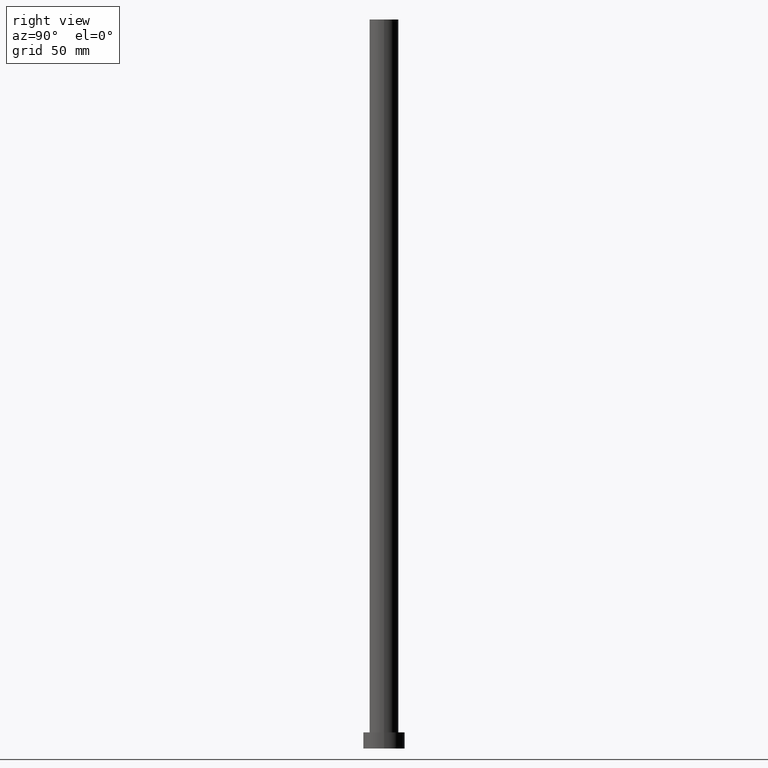
[diagram: clean part render]
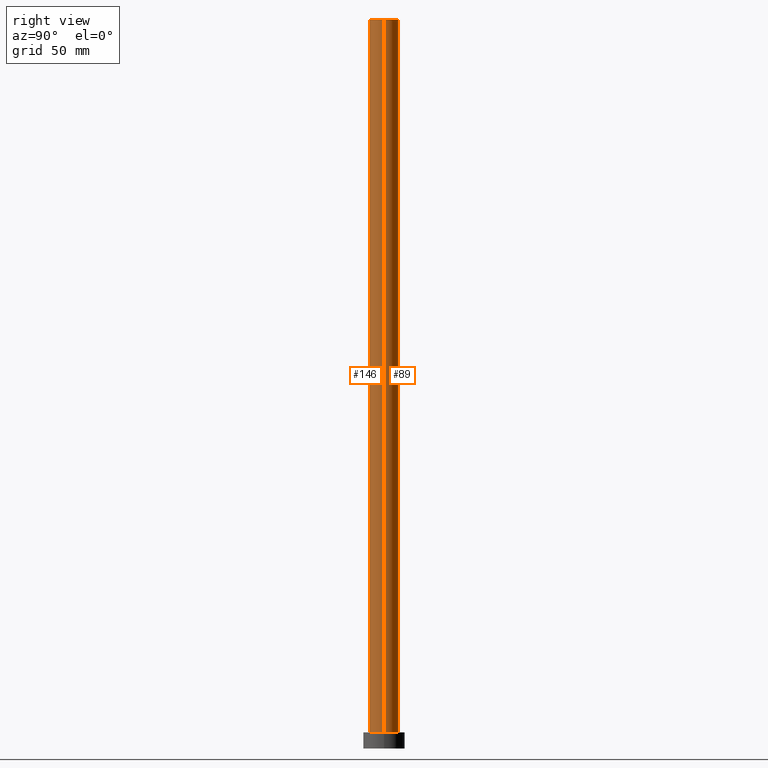
[diagram: same view with one multi-face feature highlighted, each face labeled with its STEP entity id]
A machine part, right view. The highlighted faces form ONE feature: a constant-radius fillet chain: 2 tangent blend faces with common blend radius 6.25 mm. The faces share edges in the B-rep.
Their STEP definitions:
[1] entity #89 (Cylinder):
#9 = CYLINDRICAL_SURFACE ( 'NONE', #51, 6.250000000000000000 ) ;
#11 = DIRECTION ( 'NONE',  ( 0.000000000000000000, 0.000000000000000000, 1.000000000000000000 ) ) ;
#24 = VERTEX_POINT ( 'NONE', #118 ) ;
#27 = CARTESIAN_POINT ( 'NONE',  ( 6.250000000000000000, 7.654042494670957606E-16, 7.000000000000000000 ) ) ;
#28 = VECTOR ( 'NONE', #77, 1000.000000000000000 ) ;
#33 = CIRCLE ( 'NONE', #188, 6.250000000000000000 ) ;
#44 = CARTESIAN_POINT ( 'NONE',  ( 6.250000000000000000, 7.654042494670957606E-16, 315.0000000000000000 ) ) ;
#48 = CARTESIAN_POINT ( 'NONE',  ( 6.250000000000000000, 7.654042494670957606E-16, 315.0000000000000000 ) ) ;
#51 = AXIS2_PLACEMENT_3D ( 'NONE', #120, #159, #66 ) ;
#58 = ORIENTED_EDGE ( 'NONE', *, *, #165, .T. ) ;
#63 = DIRECTION ( 'NONE',  ( 0.000000000000000000, 0.000000000000000000, 1.000000000000000000 ) ) ;
#66 = DIRECTION ( 'NONE',  ( -1.000000000000000000, 0.000000000000000000, 0.000000000000000000 ) ) ;
#67 = CARTESIAN_POINT ( 'NONE',  ( 0.000000000000000000, 0.000000000000000000, 315.0000000000000000 ) ) ;
#68 = VECTOR ( 'NONE', #245, 1000.000000000000000 ) ;
#69 = EDGE_CURVE ( 'NONE', #71, #24, #181, .T. ) ;
#71 = VERTEX_POINT ( 'NONE', #48 ) ;
#77 = DIRECTION ( 'NONE',  ( -0.000000000000000000, -0.000000000000000000, -1.000000000000000000 ) ) ;
#89 = ADVANCED_FACE ( 'NONE', ( #240 ), #9, .T. ) ;
#103 = LINE ( 'NONE', #178, #68 ) ;
#104 = DIRECTION ( 'NONE',  ( 1.000000000000000000, 0.000000000000000000, 0.000000000000000000 ) ) ;
#110 = EDGE_LOOP ( 'NONE', ( #234, #58, #192, #111 ) ) ;
#111 = ORIENTED_EDGE ( 'NONE', *, *, #133, .F. ) ;
#118 = CARTESIAN_POINT ( 'NONE',  ( -6.250000000000000000, 0.000000000000000000, 315.0000000000000000 ) ) ;
#120 = CARTESIAN_POINT ( 'NONE',  ( 0.000000000000000000, 0.000000000000000000, 315.0000000000000000 ) ) ;
#132 = VERTEX_POINT ( 'NONE', #199 ) ;
#133 = EDGE_CURVE ( 'NONE', #24, #132, #103, .T. ) ;
#159 = DIRECTION ( 'NONE',  ( -0.000000000000000000, -0.000000000000000000, -1.000000000000000000 ) ) ;
#160 = AXIS2_PLACEMENT_3D ( 'NONE', #67, #63, #197 ) ;
#165 = EDGE_CURVE ( 'NONE', #71, #186, #198, .T. ) ;
#177 = CARTESIAN_POINT ( 'NONE',  ( 0.000000000000000000, 0.000000000000000000, 7.000000000000000000 ) ) ;
#178 = CARTESIAN_POINT ( 'NONE',  ( -6.250000000000000000, 0.000000000000000000, 315.0000000000000000 ) ) ;
#181 = CIRCLE ( 'NONE', #160, 6.250000000000000000 ) ;
#186 = VERTEX_POINT ( 'NONE', #27 ) ;
#188 = AXIS2_PLACEMENT_3D ( 'NONE', #177, #11, #104 ) ;
#191 = EDGE_CURVE ( 'NONE', #186, #132, #33, .T. ) ;
#192 = ORIENTED_EDGE ( 'NONE', *, *, #191, .T. ) ;
#197 = DIRECTION ( 'NONE',  ( 1.000000000000000000, 0.000000000000000000, 0.000000000000000000 ) ) ;
#198 = LINE ( 'NONE', #44, #28 ) ;
#199 = CARTESIAN_POINT ( 'NONE',  ( -6.250000000000000000, 0.000000000000000000, 7.000000000000000000 ) ) ;
#234 = ORIENTED_EDGE ( 'NONE', *, *, #69, .F. ) ;
#240 = FACE_OUTER_BOUND ( 'NONE', #110, .T. ) ;
#245 = DIRECTION ( 'NONE',  ( -0.000000000000000000, -0.000000000000000000, -1.000000000000000000 ) ) ;
[2] entity #146 (Cylinder):
#2 = ORIENTED_EDGE ( 'NONE', *, *, #165, .F. ) ;
#6 = ORIENTED_EDGE ( 'NONE', *, *, #133, .T. ) ;
#13 = DIRECTION ( 'NONE',  ( 1.000000000000000000, 0.000000000000000000, 0.000000000000000000 ) ) ;
#24 = VERTEX_POINT ( 'NONE', #118 ) ;
#26 = FACE_OUTER_BOUND ( 'NONE', #61, .T. ) ;
#27 = CARTESIAN_POINT ( 'NONE',  ( 6.250000000000000000, 7.654042494670957606E-16, 7.000000000000000000 ) ) ;
#28 = VECTOR ( 'NONE', #77, 1000.000000000000000 ) ;
#30 = DIRECTION ( 'NONE',  ( 1.000000000000000000, 0.000000000000000000, 0.000000000000000000 ) ) ;
#41 = CIRCLE ( 'NONE', #172, 6.250000000000000000 ) ;
#43 = ORIENTED_EDGE ( 'NONE', *, *, #243, .T. ) ;
#44 = CARTESIAN_POINT ( 'NONE',  ( 6.250000000000000000, 7.654042494670957606E-16, 315.0000000000000000 ) ) ;
#48 = CARTESIAN_POINT ( 'NONE',  ( 6.250000000000000000, 7.654042494670957606E-16, 315.0000000000000000 ) ) ;
#53 = CARTESIAN_POINT ( 'NONE',  ( 0.000000000000000000, 0.000000000000000000, 315.0000000000000000 ) ) ;
#61 = EDGE_LOOP ( 'NONE', ( #2, #239, #6, #43 ) ) ;
#65 = CYLINDRICAL_SURFACE ( 'NONE', #220, 6.250000000000000000 ) ;
#68 = VECTOR ( 'NONE', #245, 1000.000000000000000 ) ;
#71 = VERTEX_POINT ( 'NONE', #48 ) ;
#77 = DIRECTION ( 'NONE',  ( -0.000000000000000000, -0.000000000000000000, -1.000000000000000000 ) ) ;
#101 = DIRECTION ( 'NONE',  ( -1.000000000000000000, 0.000000000000000000, 0.000000000000000000 ) ) ;
#103 = LINE ( 'NONE', #178, #68 ) ;
#112 = AXIS2_PLACEMENT_3D ( 'NONE', #180, #145, #13 ) ;
#118 = CARTESIAN_POINT ( 'NONE',  ( -6.250000000000000000, 0.000000000000000000, 315.0000000000000000 ) ) ;
#126 = DIRECTION ( 'NONE',  ( 0.000000000000000000, 0.000000000000000000, 1.000000000000000000 ) ) ;
#132 = VERTEX_POINT ( 'NONE', #199 ) ;
#133 = EDGE_CURVE ( 'NONE', #24, #132, #103, .T. ) ;
#139 = CARTESIAN_POINT ( 'NONE',  ( 0.000000000000000000, 0.000000000000000000, 315.0000000000000000 ) ) ;
#145 = DIRECTION ( 'NONE',  ( 0.000000000000000000, 0.000000000000000000, 1.000000000000000000 ) ) ;
#146 = ADVANCED_FACE ( 'NONE', ( #26 ), #65, .T. ) ;
#165 = EDGE_CURVE ( 'NONE', #71, #186, #198, .T. ) ;
#172 = AXIS2_PLACEMENT_3D ( 'NONE', #53, #126, #30 ) ;
#178 = CARTESIAN_POINT ( 'NONE',  ( -6.250000000000000000, 0.000000000000000000, 315.0000000000000000 ) ) ;
#180 = CARTESIAN_POINT ( 'NONE',  ( 0.000000000000000000, 0.000000000000000000, 7.000000000000000000 ) ) ;
#186 = VERTEX_POINT ( 'NONE', #27 ) ;
#190 = CIRCLE ( 'NONE', #112, 6.250000000000000000 ) ;
#198 = LINE ( 'NONE', #44, #28 ) ;
#199 = CARTESIAN_POINT ( 'NONE',  ( -6.250000000000000000, 0.000000000000000000, 7.000000000000000000 ) ) ;
#220 = AXIS2_PLACEMENT_3D ( 'NONE', #139, #221, #101 ) ;
#221 = DIRECTION ( 'NONE',  ( -0.000000000000000000, -0.000000000000000000, -1.000000000000000000 ) ) ;
#227 = EDGE_CURVE ( 'NONE', #24, #71, #41, .T. ) ;
#239 = ORIENTED_EDGE ( 'NONE', *, *, #227, .F. ) ;
#243 = EDGE_CURVE ( 'NONE', #132, #186, #190, .T. ) ;
#245 = DIRECTION ( 'NONE',  ( -0.000000000000000000, -0.000000000000000000, -1.000000000000000000 ) ) ;